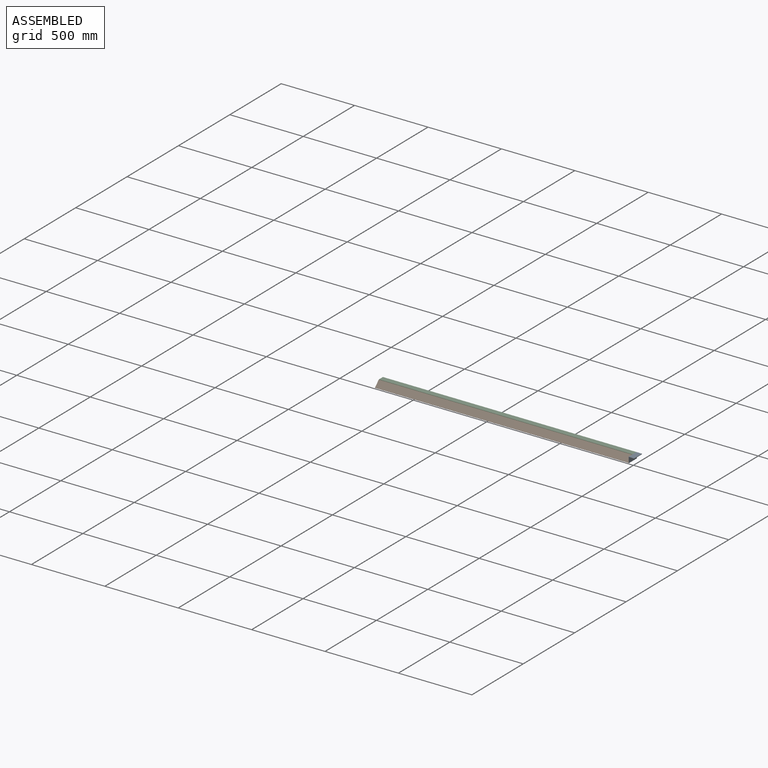
[diagram: assembled view]
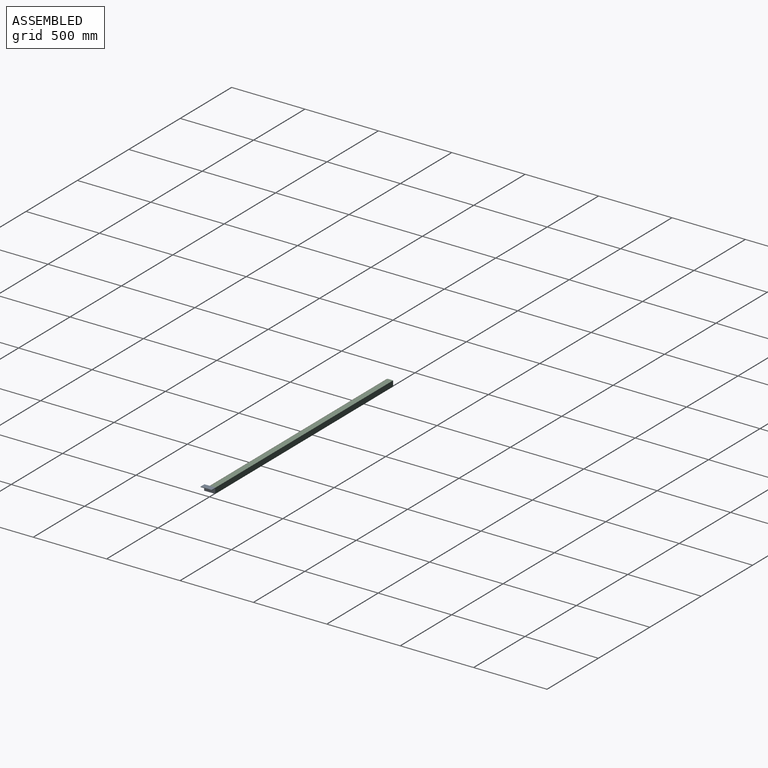
[diagram: assembled view, second angle]
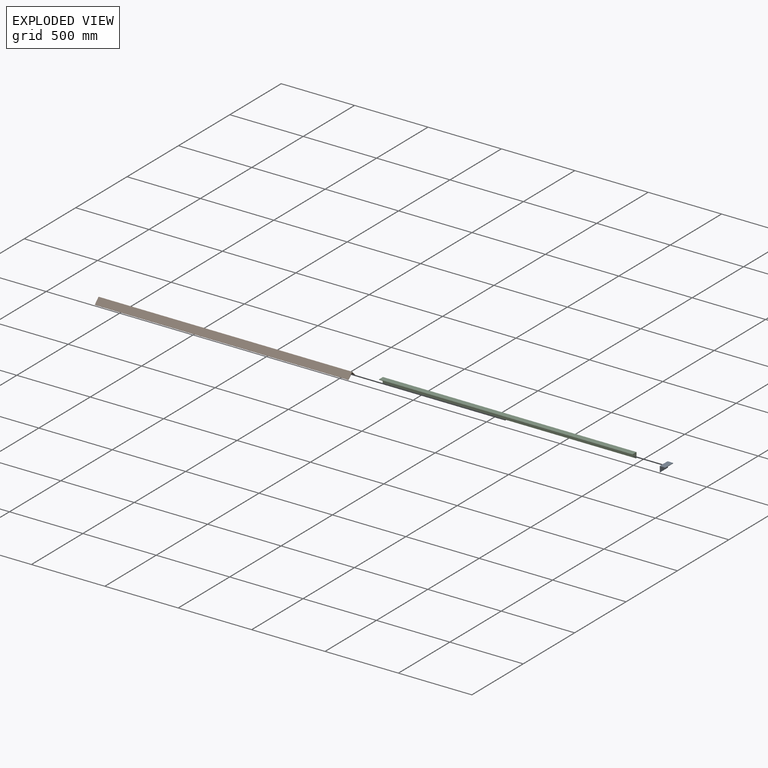
[diagram: exploded view]
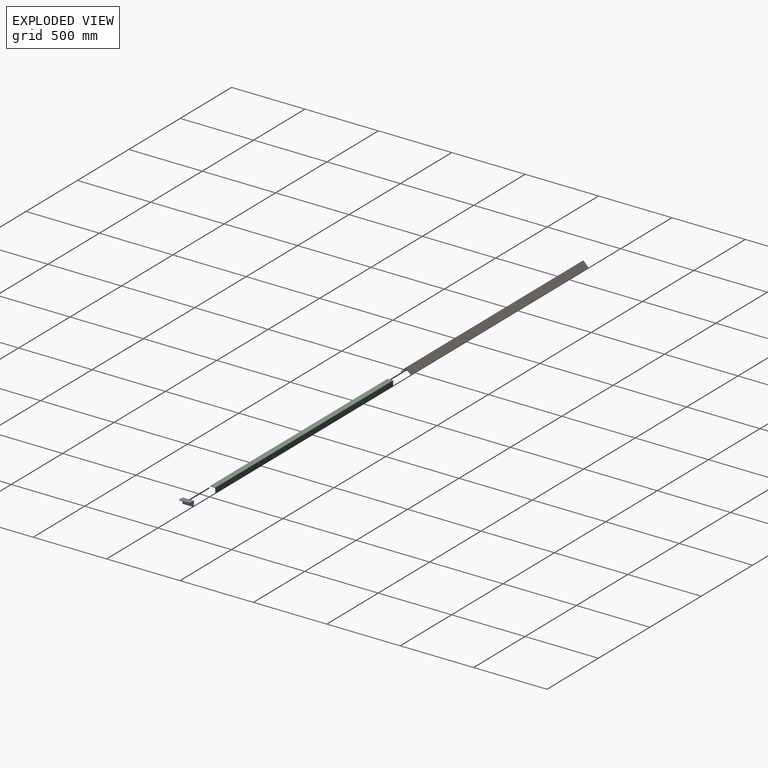
[diagram: exploded view, second angle]
ASSEMBLY  parts=3 mates=2
PART A: 9 faces, bbox 76.2x38.1x38.1 mm
  f0: plane 76.2x38.1mm, normal (0,-1,0), area 2903.2mm2, adj f1,f5,f6,f7
  f1: plane 76.2x3.18mm, normal (0,0,-1), area 241.9mm2, adj f0,f2,f6,f7
  f2: plane 76.2x29.85mm, normal (0,1,0), area 2274.2mm2, adj f1,f6,f7,f8
  f3: plane 76.2x29.85mm, normal (0,0,-1), area 2274.2mm2, adj f4,f6,f7,f8
  f4: plane 76.2x3.18mm, normal (0,1,0), area 241.9mm2, adj f3,f5,f6,f7
  f5: plane 76.2x38.1mm, normal (0,0,1), area 2903.2mm2, adj f0,f4,f6,f7
  f6: plane 38.1x38.1mm, normal (1,0,0), area 237.4mm2, adj f0,f1,f2,f3,f4,f5,f8
  f7: plane 38.1x38.1mm, normal (-1,0,0), area 237.4mm2, adj f0,f1,f2,f3,f4,f5,f8
  f8: cylinder r=5.08mm len=76.2mm, axis (1,0,0), area 608mm2, adj f2,f3,f6,f7
PART B: 9 faces, bbox 1727.2x50.8x50.8 mm
  f0: plane 1727.2x50.8mm, normal (0,-1,0), area 87741.8mm2, adj f1,f5,f6,f7
  f1: plane 1727.2x3.18mm, normal (0,0,-1), area 5483.9mm2, adj f0,f2,f6,f7
  f2: plane 1727.2x42.55mm, normal (0,1,0), area 73483.7mm2, adj f1,f6,f7,f8
  f3: plane 1727.2x42.55mm, normal (0,0,-1), area 73483.7mm2, adj f4,f6,f7,f8
  f4: plane 1727.2x3.18mm, normal (0,1,0), area 5483.9mm2, adj f3,f5,f6,f7
  f5: plane 1727.2x50.8mm, normal (0,0,1), area 87741.8mm2, adj f0,f4,f6,f7
  f6: plane 50.8x50.8mm, normal (1,0,0), area 318mm2, adj f0,f1,f2,f3,f4,f5,f8
  f7: plane 50.8x50.8mm, normal (-1,0,0), area 318mm2, adj f0,f1,f2,f3,f4,f5,f8
  f8: cylinder r=5.08mm len=1727.2mm, axis (1,0,0), area 13782.4mm2, adj f2,f3,f6,f7
PART C: 9 faces, bbox 1727.2x38.1x38.1 mm
  f0: plane 1727.2x38.1mm, normal (0,-1,0), area 65806.3mm2, adj f1,f5,f6,f7
  f1: plane 1727.2x3.18mm, normal (0,0,-1), area 5483.9mm2, adj f0,f2,f6,f7
  f2: plane 1727.2x29.85mm, normal (0,1,0), area 51548.3mm2, adj f1,f6,f7,f8
  f3: plane 1727.2x29.85mm, normal (0,0,-1), area 51548.3mm2, adj f4,f6,f7,f8
  f4: plane 1727.2x3.18mm, normal (0,1,0), area 5483.9mm2, adj f3,f5,f6,f7
  f5: plane 1727.2x38.1mm, normal (0,0,1), area 65806.3mm2, adj f0,f4,f6,f7
  f6: plane 38.1x38.1mm, normal (1,0,0), area 237.4mm2, adj f0,f1,f2,f3,f4,f5,f8
  f7: plane 38.1x38.1mm, normal (-1,0,0), area 237.4mm2, adj f0,f1,f2,f3,f4,f5,f8
  f8: cylinder r=5.08mm len=1727.2mm, axis (1,0,0), area 13782.4mm2, adj f2,f3,f6,f7
PLACE A rot(axis=(0,0,-1),90deg) t=(1386.9,38.39,-47.97)mm
PLACE B rot(axis=(-1,0,0),45deg) t=(-233.12,-48.8,9.77)mm fixed
PLACE C rot(axis=(-1,0,0),90deg) t=(-233.12,0.29,150.59)mm
MATE fastened A.f0 <-> B.f6  axis (-1,0,0) through (1494.08,0.29,35.84)mm
MATE fastened A.f0 <-> C.f6  axis (-1,0,0) through (1494.08,38.39,35.84)mm
